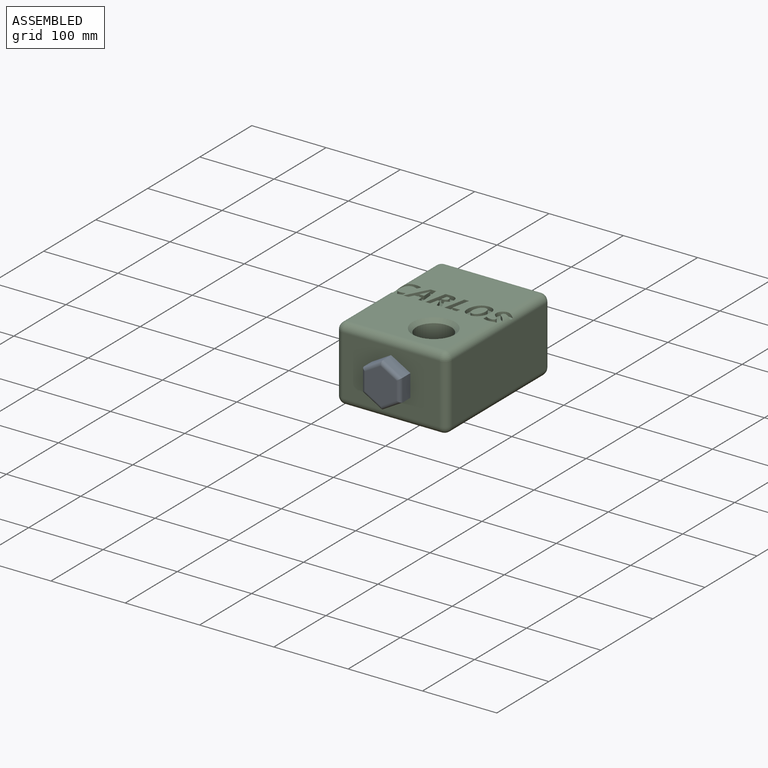
[diagram: assembled view]
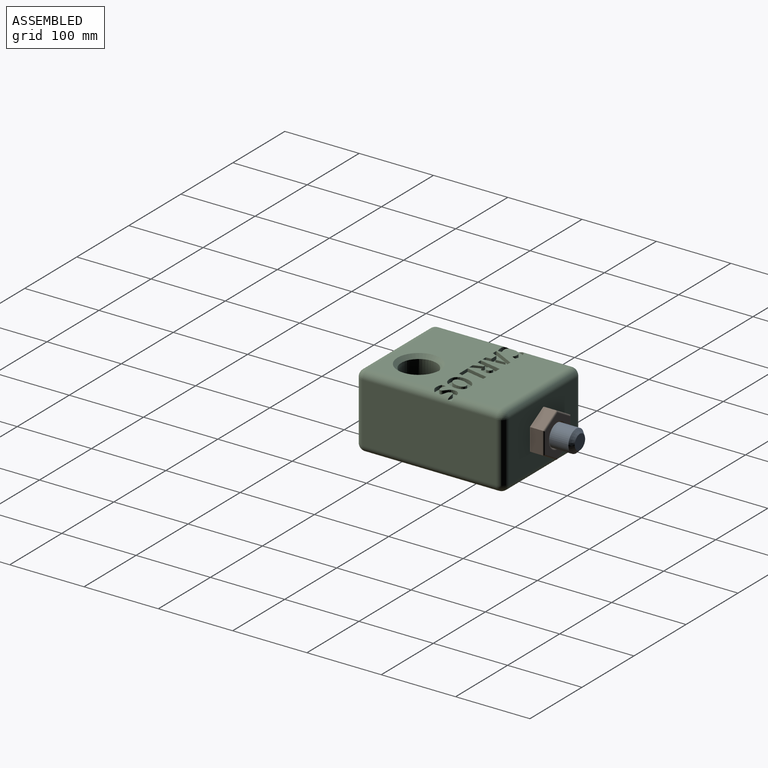
[diagram: assembled view, second angle]
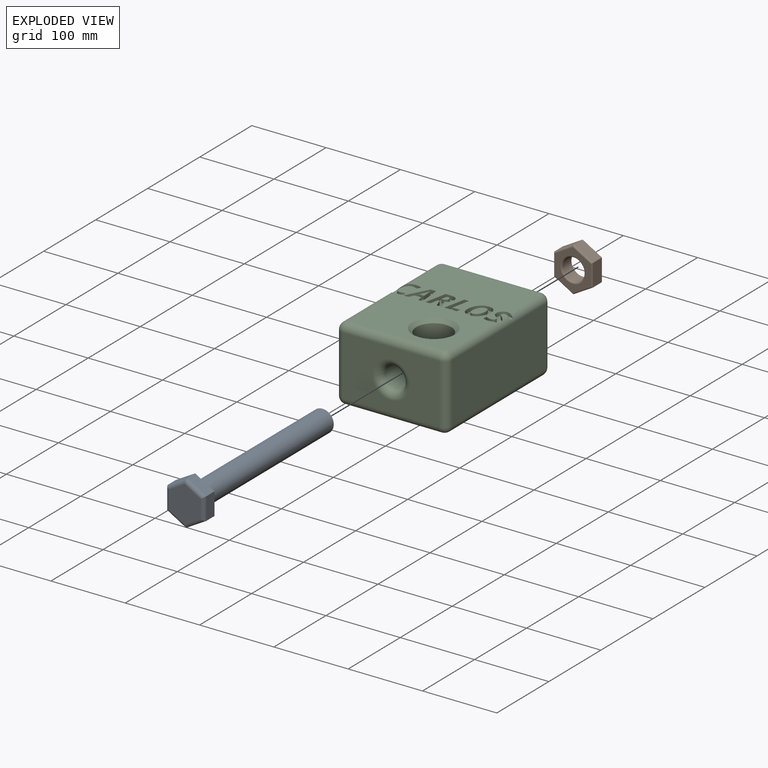
[diagram: exploded view]
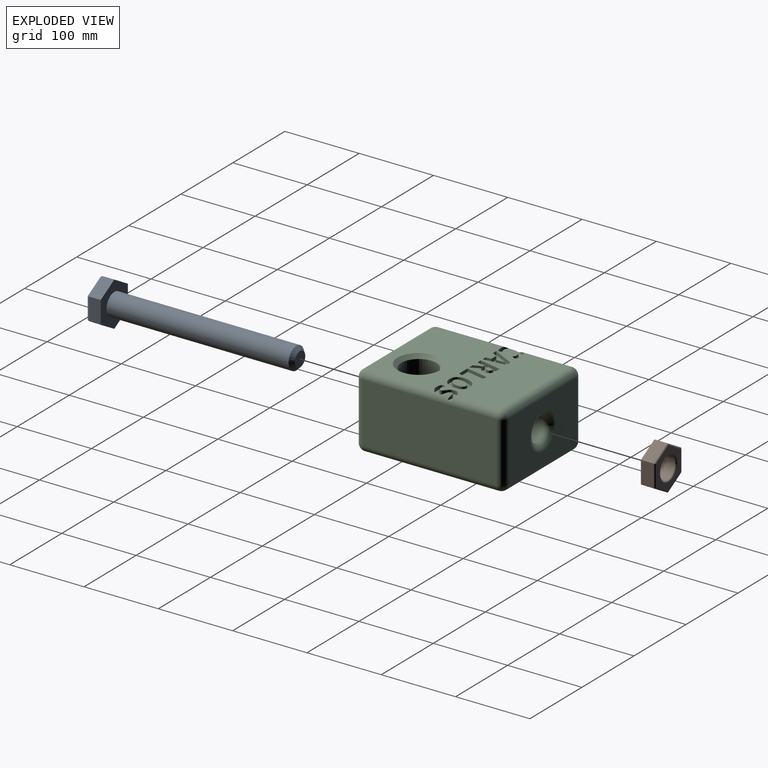
[diagram: exploded view, second angle]
ASSEMBLY  parts=3 mates=2
PART A: 17 faces, bbox 52x270x60 mm
  f0: cylinder r=15mm len=245mm, axis (0,1,0), area 23090.7mm2, adj f9,f16
  f1: plane 20x20mm, normal (0,1,0), area 314.2mm2, adj f16
  f2: plane 25.98x15mm, normal (0.5,0,0.87), area 450mm2, adj f3,f7,f9,f11
  f3: plane 25.98x15mm, normal (-0.5,0,0.87), area 450mm2, adj f2,f4,f9,f10
  f4: plane 30x15mm, normal (-1,0,0), area 450mm2, adj f3,f5,f9,f12
  f5: plane 25.98x15mm, normal (-0.5,0,-0.87), area 450mm2, adj f4,f6,f9,f14
  f6: plane 25.98x15mm, normal (0.5,0,-0.87), area 450mm2, adj f5,f7,f9,f15
  f7: plane 30x15mm, normal (1,0,0), area 450mm2, adj f2,f6,f9,f13
  f8: plane 48.45x41.96mm, normal (0,-1,0), area 1524.9mm2, adj f10,f11,f12,f13,f14,f15
  f9: plane 60x51.96mm, normal (0,1,0), area 1631.4mm2, adj f0,f2,f3,f4,f5,f6,f7
  f10: cylinder r=5mm len=28.48mm, axis (0.87,0,0.5), area 219.1mm2, adj f3,f8,f11,f12
  f11: cylinder r=5mm len=28.48mm, axis (0.87,0,-0.5), area 219.1mm2, adj f2,f8,f10,f13
  f12: cylinder r=5mm len=30mm, axis (0,0,1), area 219.1mm2, adj f4,f8,f10,f14
  f13: cylinder r=5mm len=30mm, axis (0,0,-1), area 219.1mm2, adj f7,f8,f11,f15
  f14: cylinder r=5mm len=28.48mm, axis (-0.87,0,0.5), area 219.1mm2, adj f5,f8,f12,f15
  f15: cylinder r=5mm len=28.48mm, axis (-0.87,0,-0.5), area 219.1mm2, adj f6,f8,f13,f14
  f16: cone r=15mm half-angle=45deg, axis (0,-1,0), area 555.4mm2, adj f0,f1
PART B: 23 faces, bbox 52x20x60 mm
  f0: plane 25.98x16mm, normal (-0.5,0,-0.87), area 480mm2, adj f1,f5,f12,f18
  f1: plane 25.98x16mm, normal (0.5,0,-0.87), area 480mm2, adj f0,f2,f11,f17
  f2: plane 30x16mm, normal (1,0,0), area 480mm2, adj f1,f3,f13,f19
  f3: plane 25.98x16mm, normal (0.5,0,0.87), area 480mm2, adj f2,f4,f15,f21
  f4: plane 25.98x16mm, normal (-0.5,0,0.87), area 480mm2, adj f3,f5,f16,f22
  f5: plane 30x16mm, normal (-1,0,0), area 480mm2, adj f0,f4,f14,f20
  f6: plane 55.38x47.96mm, normal (0,-1,0), area 1084.2mm2, adj f10,f17,f18,f19,f20,f21,f22
  f7: plane 55.38x47.96mm, normal (0,1,0), area 1084.2mm2, adj f9,f11,f12,f13,f14,f15,f16
  f8: cylinder r=15mm len=30mm, axis (0,-1,0), area 1508mm2, adj f9,f10
  f9: torus R=17mm, axis (0,-1,0), area 310.4mm2, adj f7,f8
  f10: torus R=17mm, axis (0,-1,0), area 310.4mm2, adj f6,f8
  f11: cylinder r=2mm len=26.98mm, axis (0.87,0,0.5), area 91.6mm2, adj f1,f7,f12,f13
  f12: cylinder r=2mm len=26.98mm, axis (0.87,0,-0.5), area 91.6mm2, adj f0,f7,f11,f14
  f13: cylinder r=2mm len=30mm, axis (0,0,1), area 91.6mm2, adj f2,f7,f11,f15
  f14: cylinder r=2mm len=30mm, axis (0,0,-1), area 91.6mm2, adj f5,f7,f12,f16
  f15: cylinder r=2mm len=26.98mm, axis (-0.87,0,0.5), area 91.6mm2, adj f3,f7,f13,f16
  f16: cylinder r=2mm len=26.98mm, axis (-0.87,0,-0.5), area 91.6mm2, adj f4,f7,f14,f15
  f17: cylinder r=2mm len=26.98mm, axis (-0.87,0,-0.5), area 91.6mm2, adj f1,f6,f18,f19
  f18: cylinder r=2mm len=26.98mm, axis (-0.87,0,0.5), area 91.6mm2, adj f0,f6,f17,f20
  f19: cylinder r=2mm len=30mm, axis (0,0,-1), area 91.6mm2, adj f2,f6,f17,f21
  f20: cylinder r=2mm len=30mm, axis (0,0,1), area 91.6mm2, adj f5,f6,f18,f22
  f21: cylinder r=2mm len=26.98mm, axis (0.87,0,-0.5), area 91.6mm2, adj f3,f6,f19,f22
  f22: cylinder r=2mm len=26.98mm, axis (0.87,0,0.5), area 91.6mm2, adj f4,f6,f20,f21
PART C: 145 faces, bbox 150.1x200.1x100.1 mm
  f0: plane 180x130.23mm, normal (0,0,1), area 18747.7mm2, adj f2,f3,f4,f5,f16,f20,f32,f33
  f1: plane 6.25x1.86mm, normal (0,0,1), area 8mm2, adj f3,f68,f69,f70,f71
  f2: cylinder r=10mm len=3.56mm, axis (0,-1,0), area 1.2mm2, adj f0,f57,f58,f59
  f3: cylinder r=10mm len=180mm, axis (0,-1,0), area 2676.8mm2, adj f0,f1,f8,f14,f15,f51,f64,f65
  f4: cylinder r=10mm len=15.58mm, axis (0,1,0), area 30.3mm2, adj f0,f32,f47,f48,f49
  f5: cylinder r=10mm len=180mm, axis (0,1,0), area 2603.7mm2, adj f0,f6,f21,f24,f39,f40,f41,f42
  f6: plane 180x80mm, normal (-1,0,0), area 14400mm2, adj f5,f25,f28,f31
  f7: plane 180x130mm, normal (0,0,-1), area 21650.6mm2, adj f18,f26,f27,f31,f143
  f8: plane 180x80mm, normal (1,0,0), area 14400mm2, adj f3,f17,f18,f19
  f9: plane 130x80mm, normal (0,-1,0), area 8436.5mm2, adj f12,f16,f17,f25,f26
  f10: plane 130x80mm, normal (0,1,0), area 8436.5mm2, adj f13,f19,f20,f27,f28
  f11: cylinder r=15mm len=180mm, axis (0,-1,0), area 15220.2mm2, adj f12,f13,f143
  f12: torus R=25mm, axis (0,-1,0), area 1839.1mm2, adj f9,f11
  f13: torus R=25mm, axis (0,-1,0), area 1839.1mm2, adj f10,f11
  f14: sphere r=10mm, area 157.1mm2, adj f3,f16,f17
  f15: sphere r=10mm, area 157.1mm2, adj f3,f19,f20
  f16: cylinder r=10mm len=130mm, axis (1,0,0), area 2042mm2, adj f0,f9,f14,f21
  f17: cylinder r=10mm len=80mm, axis (0,0,-1), area 1256.6mm2, adj f8,f9,f14,f22
  f18: cylinder r=10mm len=180mm, axis (0,1,0), area 2827.4mm2, adj f7,f8,f22,f23
  f19: cylinder r=10mm len=80mm, axis (0,0,1), area 1256.6mm2, adj f8,f10,f15,f23
  f20: cylinder r=10mm len=130mm, axis (-1,0,0), area 2042mm2, adj f0,f10,f15,f24
  f21: sphere r=10mm, area 157.1mm2, adj f5,f16,f25
  f22: sphere r=10mm, area 157.1mm2, adj f17,f18,f26
  f23: sphere r=10mm, area 157.1mm2, adj f18,f19,f27
  f24: sphere r=10mm, area 157.1mm2, adj f5,f20,f28
  f25: cylinder r=10mm len=80mm, axis (0,0,1), area 1256.6mm2, adj f6,f9,f21,f29
  f26: cylinder r=10mm len=130mm, axis (-1,0,0), area 2042mm2, adj f7,f9,f22,f29
  f27: cylinder r=10mm len=130mm, axis (1,0,0), area 2042mm2, adj f7,f10,f23,f30
  f28: cylinder r=10mm len=80mm, axis (0,0,-1), area 1256.6mm2, adj f6,f10,f24,f30
  f29: sphere r=10mm, area 157.1mm2, adj f25,f26,f31
  f30: sphere r=10mm, area 157.1mm2, adj f27,f28,f31
  f31: cylinder r=10mm len=180mm, axis (0,-1,0), area 2827.4mm2, adj f6,f7,f29,f30
  f32: extruded ~5x4.86mm, area 30mm2, adj f0,f4,f33,f49,f50
  f33: extruded ~5x4.83mm, area 26mm2, adj f0,f32,f34,f50
  f34: extruded ~5x2.79mm, area 14.1mm2, adj f0,f33,f35,f50
  f35: extruded ~5x3.56mm, area 19.5mm2, adj f0,f34,f36,f50
  f36: plane 5.09x5mm, normal (-0.9,0.43,0), area 28.1mm2, adj f0,f35,f37,f50
  f37: extruded ~5x4.23mm, area 22.8mm2, adj f0,f36,f38,f50
  f38: extruded ~5x4.52mm, area 22.8mm2, adj f0,f37,f39,f50
  f39: extruded ~8.14x5mm, area 42.9mm2, adj f0,f5,f38,f40,f50
  f40: extruded ~6.82x5.66mm, area 34.1mm2, adj f5,f39,f41,f50
  f41: extruded ~5.57x2.24mm, area 6.2mm2, adj f5,f40,f50
  f42: extruded ~4.99x2.89mm, area 7.7mm2, adj f5,f43,f50
  f43: extruded ~8.03x5mm, area 39.1mm2, adj f0,f5,f42,f44,f50
  f44: extruded ~8.14x5mm, area 41.7mm2, adj f0,f43,f45,f50
  f45: plane 5.29x5mm, normal (-1,0,0), area 26.5mm2, adj f0,f44,f46,f50
  f46: extruded ~6.88x5mm, area 35.5mm2, adj f0,f45,f47,f50
  f47: extruded ~5x4.45mm, area 24.4mm2, adj f0,f4,f46,f48,f50
  f48: extruded ~5.05x4.92mm, area 25.2mm2, adj f4,f47,f49,f50
  f49: extruded ~6.88x4.9mm, area 33.3mm2, adj f4,f32,f48,f50
  f50: plane 30.63x24.45mm, normal (0,0,1), area 301.4mm2, adj f5,f32,f33,f34,f35,f36,f37,f38
  f51: extruded ~5.36x5mm, area 27.4mm2, adj f0,f3,f52,f74,f75
  f52: extruded ~5x3.59mm, area 24.4mm2, adj f0,f51,f53,f75
  f53: extruded ~5x4.69mm, area 24.6mm2, adj f0,f52,f54,f75
  f54: extruded ~5x4.25mm, area 22.3mm2, adj f0,f53,f55,f75
  f55: extruded ~5x3.99mm, area 28.3mm2, adj f0,f54,f56,f75
  f56: extruded ~5x2.52mm, area 16.3mm2, adj f0,f55,f57,f75
  f57: extruded ~5x1.23mm, area 7.3mm2, adj f0,f2,f56,f58,f75
  f58: extruded ~5x1.54mm, area 7.9mm2, adj f2,f57,f59,f75
  f59: extruded ~5x2.37mm, area 14.1mm2, adj f0,f2,f58,f60,f75
  f60: extruded ~5x3.56mm, area 18.6mm2, adj f0,f59,f61,f75
  f61: extruded ~7.29x5mm, area 38.5mm2, adj f0,f60,f62,f75
  f62: plane 5.57x5mm, normal (1,0,0), area 27.9mm2, adj f0,f61,f63,f75
  f63: extruded ~7.25x5mm, area 37.9mm2, adj f0,f62,f64,f75
  f64: extruded ~8.15x5mm, area 42.4mm2, adj f0,f3,f63,f65,f75
  f65: extruded ~6.73x4.27mm, area 23.6mm2, adj f3,f64,f66,f75
  f66: extruded ~4.59x3.32mm, area 13mm2, adj f3,f65,f67,f75
  f67: extruded ~4.83x3.68mm, area 21.6mm2, adj f3,f66,f68,f75
  f68: extruded ~5x3.01mm, area 19.4mm2, adj f1,f3,f67,f69,f75
  f69: extruded ~5x2.17mm, area 11.5mm2, adj f1,f68,f70,f75
  f70: extruded ~5x2.42mm, area 13.7mm2, adj f1,f69,f71,f75
  f71: extruded ~5x2.76mm, area 14.7mm2, adj f1,f3,f70,f72,f75
  f72: extruded ~5.86x4.79mm, area 20.9mm2, adj f3,f71,f73,f75
  f73: plane 1.75x1.24mm, normal (-0.91,0.42,0), area 1.1mm2, adj f3,f72,f75
  f74: extruded ~6.64x4.79mm, area 21.1mm2, adj f3,f51,f75
  f75: plane 30.58x20.44mm, normal (0,0,1), area 303.9mm2, adj f3,f51,f52,f53,f54,f55,f56,f57
  f76: plane 29.75x6.28mm, normal (0.98,-0.21,0), area 152mm2, adj f0,f77,f81,f82
  f77: plane 16.62x5mm, normal (0,1,0), area 83.1mm2, adj f0,f76,f78,f82
  f78: plane 5.21x5mm, normal (-0.98,0.21,0), area 26.6mm2, adj f0,f77,f79,f82
  f79: plane 10.42x5mm, normal (0,-1,0), area 52.1mm2, adj f0,f78,f80,f82
  f80: plane 24.54x5.21mm, normal (-0.98,0.21,0), area 125.4mm2, adj f0,f79,f81,f82
  f81: plane 6.23x5mm, normal (0,-1,0), area 31.2mm2, adj f0,f76,f80,f82
  f82: plane 29.75x17.72mm, normal (0,0,1), area 239.1mm2, adj f76,f77,f78,f79,f80,f81
  f83: extruded ~5x4.52mm, area 25mm2, adj f84,f102,f103,f141
  f84: extruded ~5x3.72mm, area 20.9mm2, adj f83,f85,f103,f141
  f85: extruded ~5x4.47mm, area 23.8mm2, adj f84,f86,f103,f141
  f86: extruded ~7.26x5mm, area 36.9mm2, adj f85,f87,f103,f141
  f87: extruded ~5.01x5mm, area 29.9mm2, adj f86,f88,f103,f141
  f88: extruded ~5x4.49mm, area 24.7mm2, adj f87,f89,f103,f141
  f89: extruded ~5x3.82mm, area 21.2mm2, adj f88,f90,f103,f141
  f90: extruded ~5x4.52mm, area 24.1mm2, adj f89,f91,f103,f141
  f91: extruded ~7.06x5mm, area 36mm2, adj f90,f102,f103,f141
  f92: extruded ~10.3x5mm, area 52.9mm2, adj f0,f93,f101,f103
  f93: extruded ~8.2x5mm, area 44.6mm2, adj f0,f92,f94,f103
  f94: extruded ~8.04x5mm, area 44mm2, adj f0,f93,f95,f103
  f95: extruded ~8.18x5mm, area 43.3mm2, adj f0,f94,f96,f103
  f96: extruded ~6.95x5.56mm, area 45.1mm2, adj f0,f95,f97,f103
  f97: extruded ~9.92x5mm, area 51mm2, adj f0,f96,f98,f103
  f98: extruded ~8.33x5mm, area 45.3mm2, adj f0,f97,f99,f103
  f99: extruded ~8.13x5mm, area 44.6mm2, adj f0,f98,f100,f103
  f100: extruded ~8.06x5mm, area 42.5mm2, adj f0,f99,f101,f103
  f101: extruded ~6.87x5.51mm, area 44.7mm2, adj f0,f92,f100,f103
  f102: extruded ~5.11x5mm, area 30.5mm2, adj f83,f91,f103,f141
  f103: plane 30.63x26.63mm, normal (0,0,1), area 433.6mm2, adj f83,f84,f85,f86,f87,f88,f89,f90
  f104: plane 11.41x5mm, normal (-0.98,0.21,0), area 58.3mm2, adj f0,f105,f122,f123
  f105: plane 5x2.42mm, normal (0,1,0), area 12.1mm2, adj f0,f104,f106,f123
  f106: plane 11.41x5mm, normal (0.94,0.35,0), area 60.8mm2, adj f0,f105,f107,f123
  f107: plane 6.76x5mm, normal (0,1,0), area 33.8mm2, adj f0,f106,f108,f123
  f108: plane 12.64x5.31mm, normal (-0.92,-0.39,0), area 68.5mm2, adj f0,f107,f109,f123
  f109: extruded ~5x4.87mm, area 30.2mm2, adj f0,f108,f110,f123
  f110: extruded ~5.52x5mm, area 29.4mm2, adj f0,f109,f111,f123
  f111: extruded ~6.08x5mm, area 33.8mm2, adj f0,f110,f112,f123
  f112: extruded ~7.25x5mm, area 38.5mm2, adj f0,f111,f113,f123
  f113: plane 7.3x5mm, normal (0,-1,0), area 36.5mm2, adj f0,f112,f114,f123
  f114: plane 29.75x6.28mm, normal (0.98,-0.21,0), area 152mm2, adj f0,f113,f122,f123
  f115: plane 5x1.59mm, normal (0,-1,0), area 7.9mm2, adj f116,f121,f123,f124
  f116: plane 8.03x5mm, normal (-0.98,0.21,0), area 41.1mm2, adj f115,f117,f123,f124
  f117: plane 5x1.5mm, normal (0,1,0), area 7.5mm2, adj f116,f118,f123,f124
  f118: extruded ~5x3.04mm, area 16.1mm2, adj f117,f119,f123,f124
  f119: extruded ~5x2.5mm, area 13.8mm2, adj f118,f120,f123,f124
  f120: extruded ~5x3.54mm, area 19.9mm2, adj f119,f121,f123,f124
  f121: extruded ~5x4.15mm, area 21.9mm2, adj f115,f120,f123,f124
  f122: plane 6.2x5mm, normal (0,1,0), area 31mm2, adj f0,f104,f114,f123
  f123: plane 29.75x23.26mm, normal (0,0,1), area 410.6mm2, adj f104,f105,f106,f107,f108,f109,f110,f111
  f124: plane 8.03x7.23mm, normal (0,0,1), area 44.5mm2, adj f115,f116,f117,f118,f119,f120,f121
  f125: plane 7.12x5mm, normal (1,0.07,0), area 35.7mm2, adj f126,f139,f140,f142
  f126: plane 6.77x5mm, normal (0,-1,0), area 33.9mm2, adj f125,f127,f140,f142
  f127: plane 7.83x5mm, normal (-0.9,0.44,0), area 43.6mm2, adj f126,f128,f140,f142
  f128: extruded ~5.17x5mm, area 28mm2, adj f127,f129,f140,f142
  f129: plane 5x0.1mm, normal (0,1,0), area 0.5mm2, adj f128,f130,f140,f142
  f130: plane 5x3.18mm, normal (1,0.02,0), area 15.9mm2, adj f129,f139,f140,f142
  f131: plane 9.62x5mm, normal (0,1,0), area 48.1mm2, adj f0,f132,f138,f140
  f132: plane 7.08x5mm, normal (1,0.07,0), area 35.5mm2, adj f0,f131,f133,f140
  f133: plane 6.04x5mm, normal (0,1,0), area 30.2mm2, adj f0,f132,f134,f140
  f134: plane 29.87x5mm, normal (-1,-0.1,0), area 150.1mm2, adj f0,f133,f135,f140
  f135: plane 7.59x5mm, normal (0,-1,0), area 38mm2, adj f0,f134,f136,f140
  f136: plane 29.87x15.58mm, normal (0.89,-0.46,0), area 168.4mm2, adj f0,f135,f137,f140
  f137: plane 6.51x5mm, normal (0,1,0), area 32.6mm2, adj f0,f136,f138,f140
  f138: plane 7.08x5mm, normal (-0.9,0.44,0), area 39.5mm2, adj f0,f131,f137,f140
  f139: plane 5x2.7mm, normal (1,0.04,0), area 13.5mm2, adj f125,f130,f140,f142
  f140: plane 29.87x26.16mm, normal (0,0,1), area 379.8mm2, adj f125,f126,f127,f128,f129,f130,f131,f132
  f141: plane 20.08x13.96mm, normal (0,0,1), area 218.3mm2, adj f83,f84,f85,f86,f87,f88,f89,f90
  f142: plane 13x6.77mm, normal (0,0,1), area 41.9mm2, adj f125,f126,f127,f128,f129,f130,f139
  f143: cylinder r=23.6mm len=95mm, axis (0,0,1), area 12572.2mm2, adj f7,f11,f144
  f144: cone r=23.6mm half-angle=45deg, axis (0,0,1), area 1159.5mm2, adj f0,f143
PLACE A t=(-26.46,-26.26,43.96)mm
PLACE B t=(-26.46,68.74,43.96)mm
PLACE C t=(-26.46,-51.26,43.96)mm fixed
MATE fastened C.f11 <-> B.f8  axis (0,1,0) through (-26.46,48.74,43.96)mm
MATE fastened C.f11 <-> A.f0  axis (0,-1,0) through (-26.46,-151.26,43.96)mm
